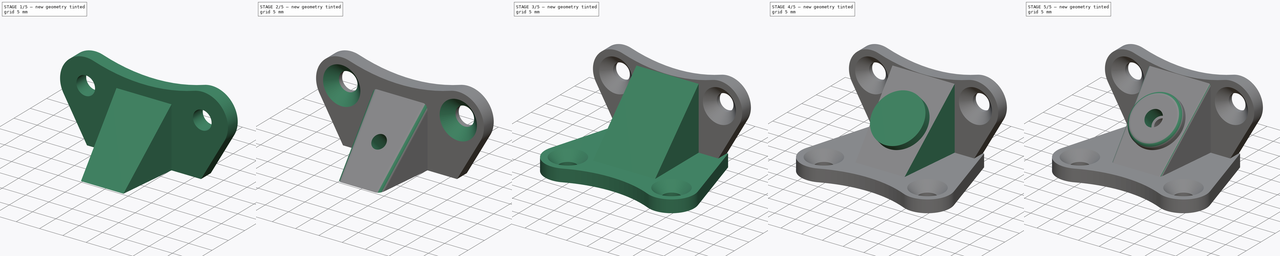
[diagram: build sequence overview — one tinted view per stage of 5, left to right]
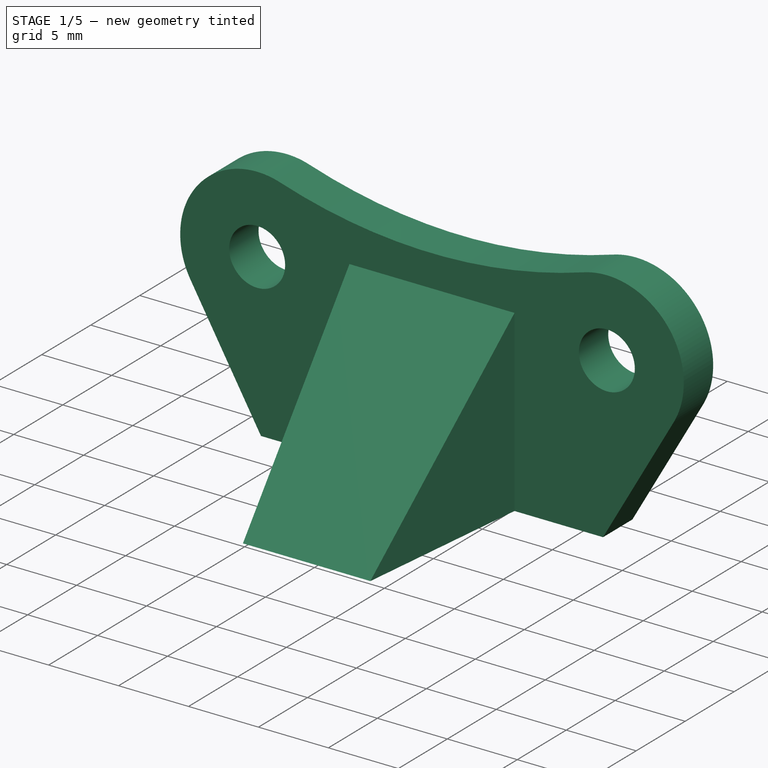
[diagram: stage 1 of 5 — iso view after this stage's code; geometry added in this stage tinted green]
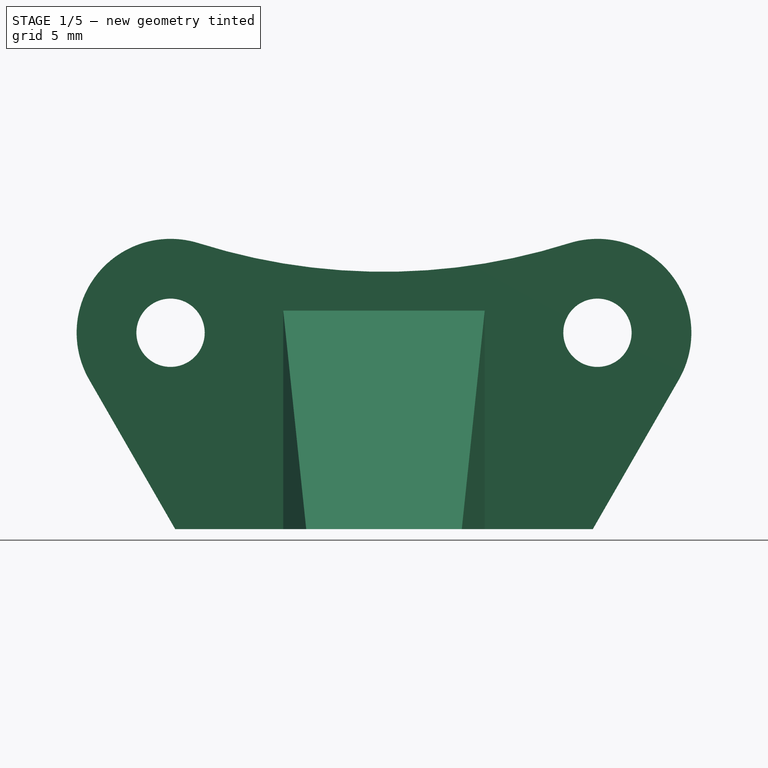
[diagram: stage 1 of 5 — front view after this stage's code; geometry added in this stage tinted green]
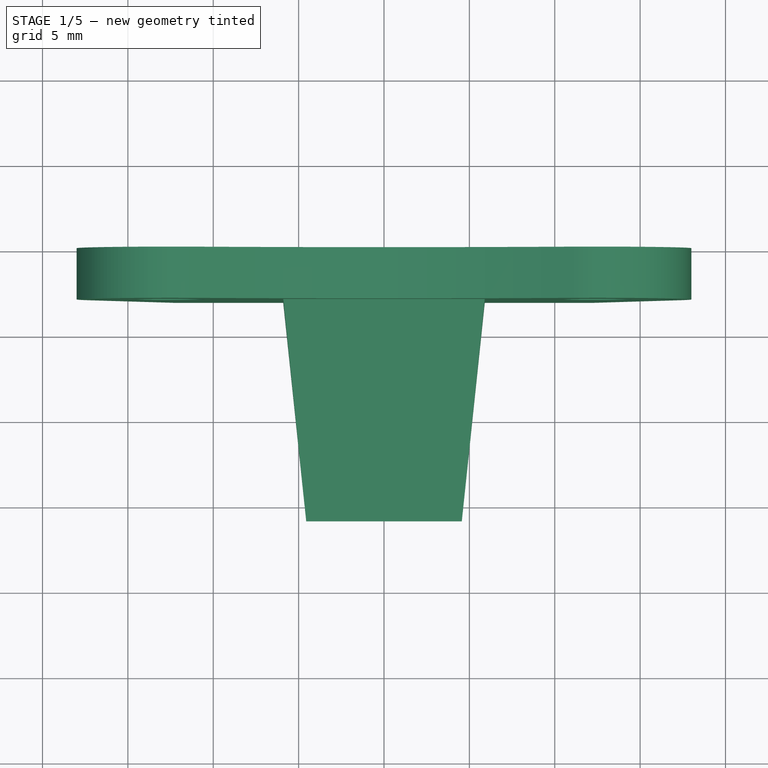
[diagram: stage 1 of 5 — top view after this stage's code; geometry added in this stage tinted green]
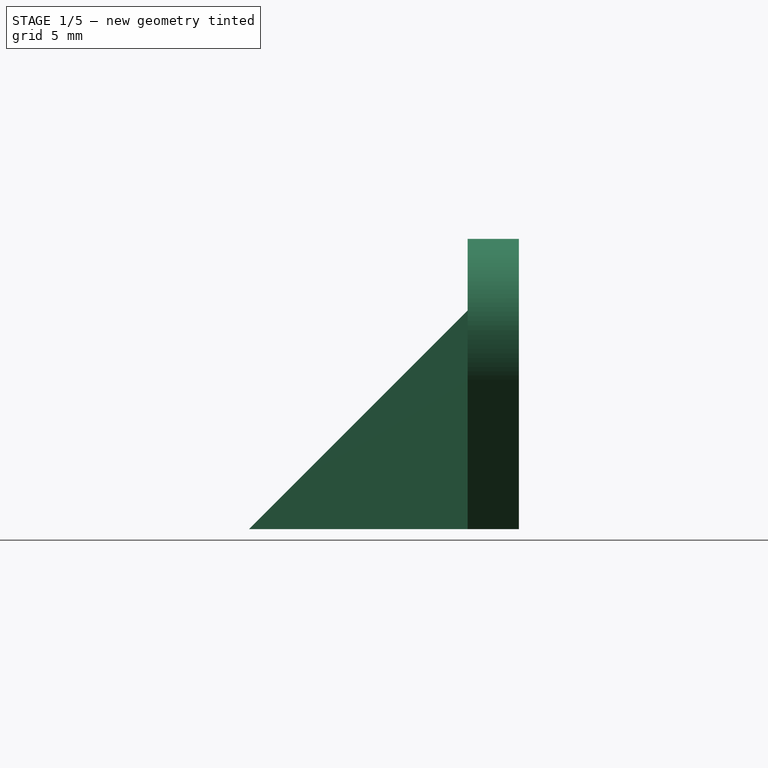
[diagram: stage 1 of 5 — right view after this stage's code; geometry added in this stage tinted green]
FCSTD DOCUMENT  (FreeCAD 1.0R39109 (Git))
Label: притяжка
License: All rights reserved
LicenseURL: https://en.wikipedia.org/wiki/All_rights_reserved
objects: Sketcher::SketchObject×8, PartDesign::Pad×5, PartDesign::Pocket×3, PartDesign::Draft×3, PartDesign::Fillet×3, PartDesign::Chamfer×2, PartDesign::Body×2
note: 66 computed .brp shape members not serialized (recipe doc carries the construction recipe); baked Part::Feature solids carry a one-line shape summary decoded from their .brp

FEATURE [PartDesign::Body] Body
  AllowCompound = false
  Group = -> [Sketch,Pad,Chamfer,Sketch001,Pad001,Sketch002,Pocket,Draft,Draft001,Sketch003,Pad002,Sketch004,Pocket001,Fillet,Fillet001]
  Origin = -> Origin
  Tip = -> Fillet001
FEATURE [Sketcher::SketchObject] Sketch005
  ArcFitTolerance = 1e-06
  AttachmentSupport = -> [XZ_Plane001]
  FullyConstrained = true
  MakeInternals = false
  MapMode = 5
  Placement = pos=(0,0,0) rot=(1,0,0;1.5708rad)
  sketch-geometry (13):
    g0: LineSegment [constr] StartX=-18 StartY=0 StartZ=0 EndX=18 EndY=0 EndZ=0
    g1: LineSegment [constr] StartX=18 StartY=0 StartZ=0 EndX=18 EndY=20 EndZ=0
    g2: LineSegment [constr] StartX=18 StartY=20 StartZ=0 EndX=-18 EndY=20 EndZ=0
    g3: LineSegment [constr] StartX=-18 StartY=20 StartZ=0 EndX=-18 EndY=0 EndZ=0
    g4: Circle CenterX=-12.5 CenterY=14.5 CenterZ=0 NormalX=0 NormalY=0 NormalZ=1 AngleXU=0 Radius=2
    g5: Circle CenterX=12.5 CenterY=14.5 CenterZ=0 NormalX=0 NormalY=0 NormalZ=1 AngleXU=0 Radius=2
    g6: ArcOfCircle CenterX=-12.5 CenterY=14.5 CenterZ=0 NormalX=0 NormalY=0 NormalZ=1 AngleXU=0 Radius=5.5 StartAngle=1.26484 EndAngle=3.66387
    g7: ArcOfCircle CenterX=12.5 CenterY=14.5 CenterZ=0 NormalX=0 NormalY=0 NormalZ=1 AngleXU=0 Radius=5.5 StartAngle=5.76091 EndAngle=8.15994
    g8: ArcOfCircle CenterX=4e-15 CenterY=54.0727 CenterZ=0 NormalX=0 NormalY=0 NormalZ=1 AngleXU=0 Radius=36 StartAngle=4.40643 EndAngle=5.01834
    g9: LineSegment StartX=-17.2668 StartY=11.7563 StartZ=0 EndX=-12.2268 EndY=3 EndZ=0
    g10: LineSegment [constr] StartX=-10.5 StartY=0 StartZ=0 EndX=10.5 EndY=0 EndZ=0
    g11: LineSegment StartX=12.2268 StartY=3 StartZ=0 EndX=17.2668 EndY=11.7563 EndZ=0
    g12: LineSegment StartX=-12.2268 StartY=3 StartZ=0 EndX=12.2268 EndY=3 EndZ=0
  constraints (34):
    c: Coincident(g0,g1)
    c: Coincident(g1,g2)
    c: Coincident(g2,g3)
    c: Coincident(g3,g0)
    c: Horizontal(g0)
    c: Horizontal(g2)
    c: Vertical(g1)
    c: Vertical(g3)
    c: DistanceX(g0,g0) = 36
    c: DistanceY(g1,g1) = 20
    c: Symmetric(g4,g5,g-2)
    c: Equal(g4,g5)
    c: Diameter(g4) = 4
    c: Coincident(g6,g4)
    c: Coincident(g7,g5)
    c: PointOnObject(g10,g0)
    c: DistanceX(g4,g5) = 25
    c: Tangent(g11,g7) = -1.5708
    c: Tangent(g8,g7) = 1.5708
    c: Tangent(g8,g6) = 1.5708
    c: Tangent(g6,g9) = -1.5708
    c: Equal(g6,g7)
    c: Tangent(g7,g2)
    c: Tangent(g7,g1)
    c: Radius(g8) = 36
    c: DistanceX(g10,g10) = 21
    c: Horizontal(g12)
    c: Distance(g12,g-1) = 3
    c: Coincident(g11,g12)
    c: Coincident(g9,g12)
    c: PointOnObject(g10,g11)
    c: Symmetric(g0,g0,g-1)
    c: PointOnObject(g10,g9)
    c: Symmetric(g10,g10,g-1)
FEATURE [PartDesign::Pad] Pad003
  Direction = (0,-1,2e-16)
  Length = 3
  Length2 = 10
  Placement = pos=(0,0,0) rot=(1,0,0;1.5708rad)
  Profile = -> Sketch005
  ReferenceAxis = -> Sketch005 [N_Axis]
  Refine = true
  Suppressed = false
  Type = 0
FEATURE [Sketcher::SketchObject] Sketch006
  ArcFitTolerance = 1e-06
  AttachmentSupport = -> [YZ_Plane001]
  ExternalGeometry = -> [Pad003]
  FullyConstrained = true
  MakeInternals = false
  MapMode = 5
  Placement = pos=(0,0,0) rot=(0.57735,0.57735,0.57735;2.0944rad)
  sketch-geometry (3):
    g0: LineSegment StartX=-3 StartY=3 StartZ=0 EndX=-15.8 EndY=3 EndZ=0
    g1: LineSegment StartX=-15.8 StartY=3 StartZ=0 EndX=-3 EndY=15.8 EndZ=0
    g2: LineSegment StartX=-3 StartY=15.8 StartZ=0 EndX=-3 EndY=3 EndZ=0
  constraints (8):
    c: Coincident(g-4,g0)
    c: Horizontal(g0)
    c: Coincident(g0,g1)
    c: Coincident(g1,g2)
    c: Vertical(g2)
    c: Coincident(g2,g0)
    c: Equal(g2,g0)
    c: DistanceY(g2,g2) = 12.8
FEATURE [PartDesign::Pad] Pad004
  BaseFeature = -> Pad003
  Direction = (1,0,0)
  Length = 11.8
  Length2 = 10
  Midplane = true
  Placement = pos=(0,0,0) rot=(1,0,0;1.5708rad)
  Profile = -> Sketch006
  ReferenceAxis = -> Sketch006 [N_Axis]
  Refine = true
  Suppressed = false
  Type = 0
FEATURE [PartDesign::Draft] Draft002
  Angle = 6
  Base = -> Pad004 [Face12,Face10]
  BaseFeature = -> Pad004
  NeutralPlane = -> Pad004 [Face5]
  Placement = pos=(0,0,0) rot=(1,0,0;1.5708rad)
  Refine = true
  Reversed = true
  SupportTransform = false
  Suppressed = false
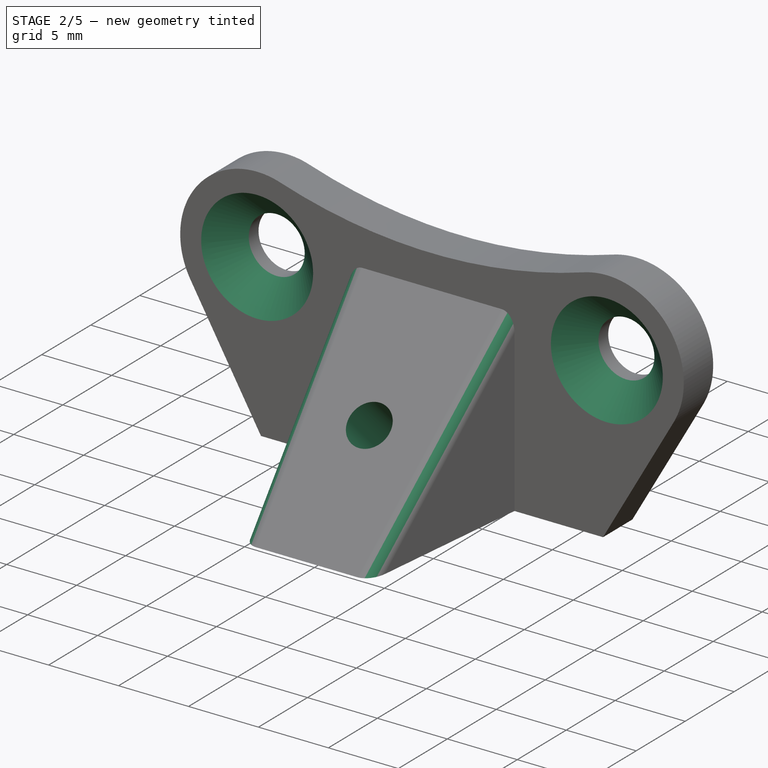
[diagram: stage 2 of 5 — iso view after this stage's code; geometry added in this stage tinted green]
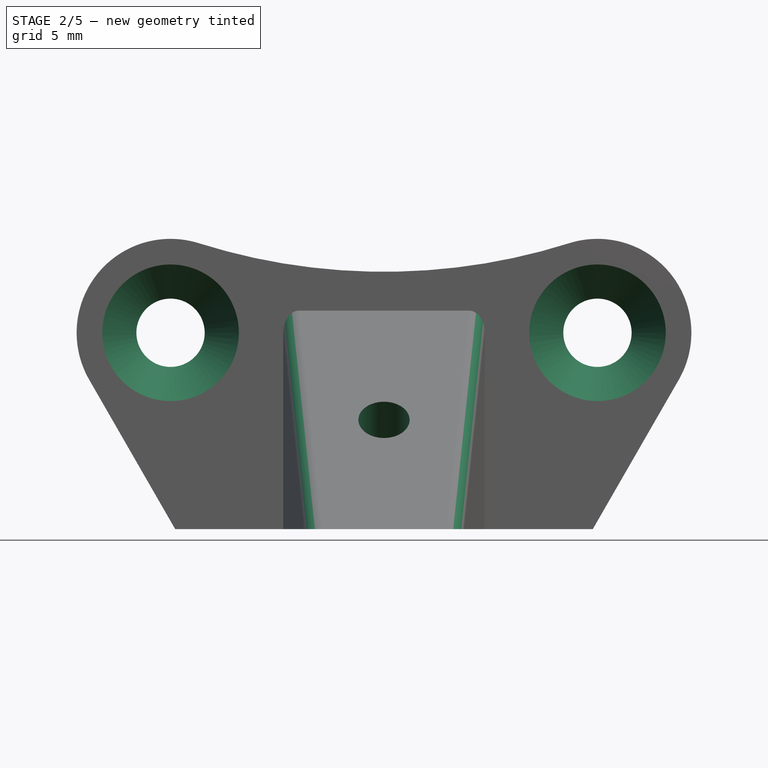
[diagram: stage 2 of 5 — front view after this stage's code; geometry added in this stage tinted green]
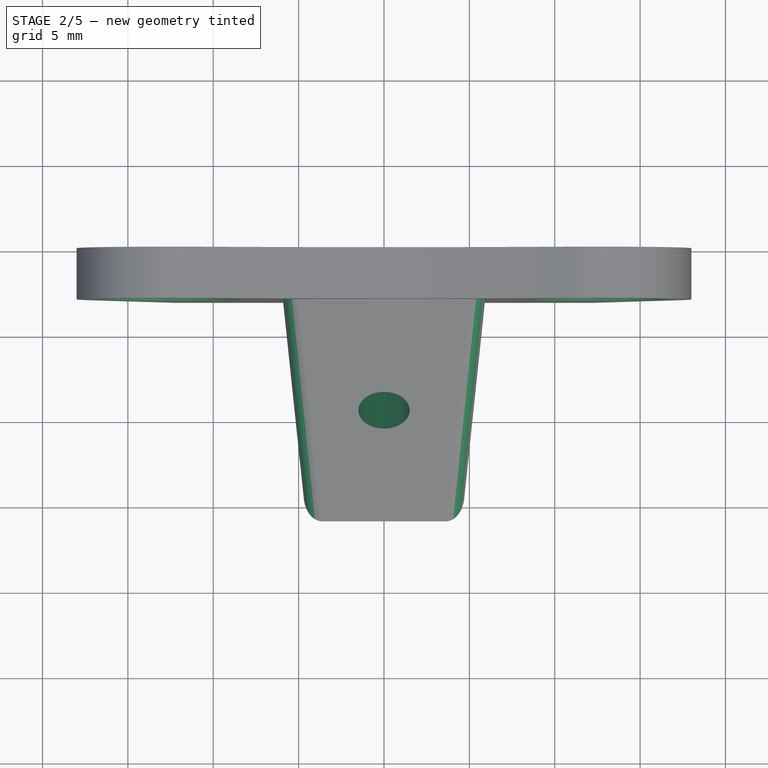
[diagram: stage 2 of 5 — top view after this stage's code; geometry added in this stage tinted green]
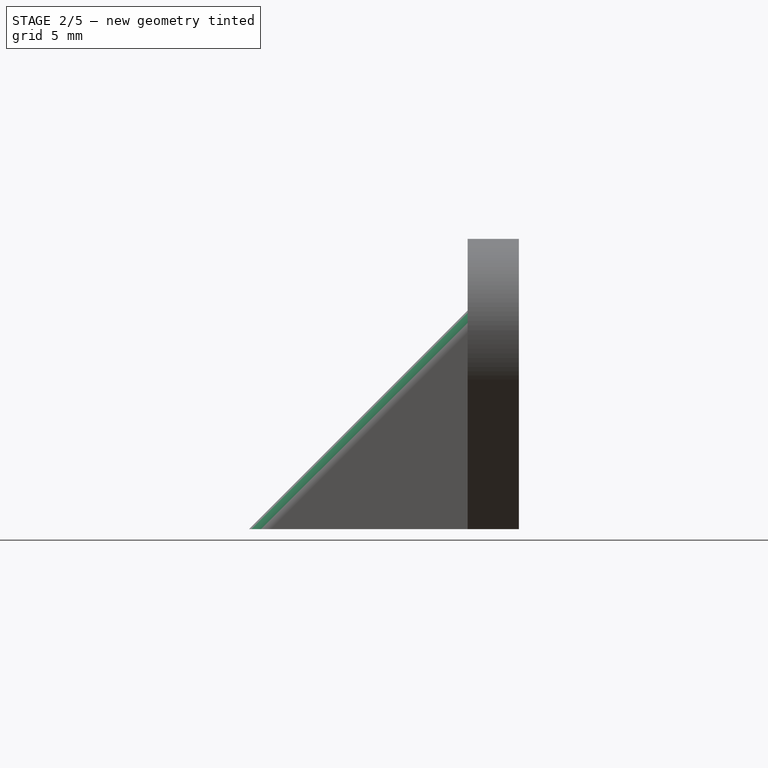
[diagram: stage 2 of 5 — right view after this stage's code; geometry added in this stage tinted green]
FEATURE [PartDesign::Chamfer] Chamfer001
  Angle = 45
  Base = -> Draft002 [Edge23,Edge24]
  BaseFeature = -> Draft002
  ChamferType = 0
  FlipDirection = false
  Placement = pos=(0,0,0) rot=(1,0,0;1.5708rad)
  Refine = true
  Size = 2
  Size2 = 1
  SupportTransform = false
  Suppressed = false
  UseAllEdges = false
FEATURE [Sketcher::SketchObject] Sketch007
  ArcFitTolerance = 1e-06
  AttachmentSupport = -> [Chamfer001]
  FullyConstrained = true
  MakeInternals = false
  MapMode = 5
  Placement = pos=(0,-9.4,9.4) rot=(0,-0.382683,0.92388;3.14159rad)
  sketch-geometry (1):
    g0: Circle CenterX=0 CenterY=0 CenterZ=0 NormalX=0 NormalY=0 NormalZ=1 AngleXU=0 Radius=1.5
  constraints (2):
    c: Coincident(g0,g-1)
    c: Diameter(g0) = 3
FEATURE [PartDesign::Pocket] Pocket002
  BaseFeature = -> Chamfer001
  Direction = (0,0.707107,-0.707107)
  Length = 5
  Length2 = 5
  Placement = pos=(0,0,0) rot=(1,0,0;1.5708rad)
  Profile = -> Sketch007
  ReferenceAxis = -> Sketch007 [N_Axis]
  Refine = true
  Suppressed = false
  Type = 1
FEATURE [PartDesign::Fillet] Fillet002
  Base = -> Pocket002 [Edge26,Edge27]
  BaseFeature = -> Pocket002
  Placement = pos=(0,0,0) rot=(1,0,0;1.5708rad)
  Radius = 1
  Refine = true
  SupportTransform = false
  Suppressed = false
  UseAllEdges = false
FEATURE [PartDesign::Body] Body001  label="Тело"
  AllowCompound = false
  Group = -> [Sketch005,Pad003,Sketch006,Pad004,Draft002,Chamfer001,Sketch007,Pocket002,Fillet002]
  Origin = -> Origin001
  Tip = -> Fillet002
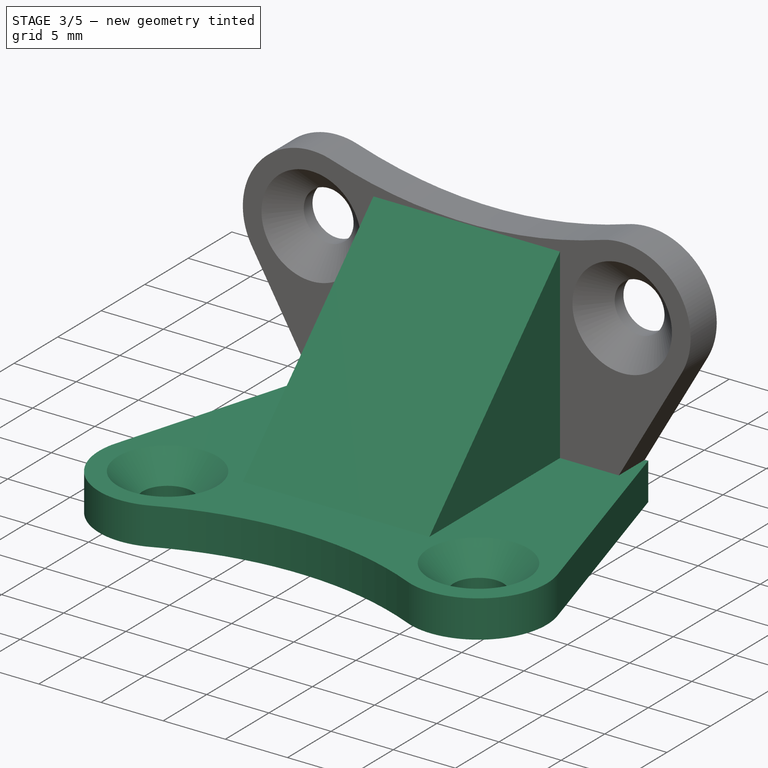
[diagram: stage 3 of 5 — iso view after this stage's code; geometry added in this stage tinted green]
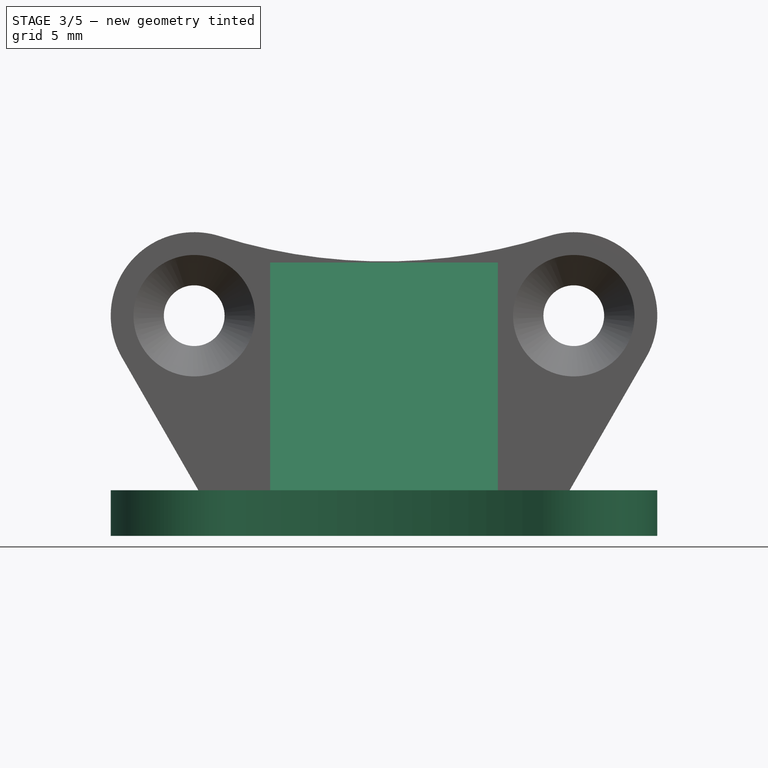
[diagram: stage 3 of 5 — front view after this stage's code; geometry added in this stage tinted green]
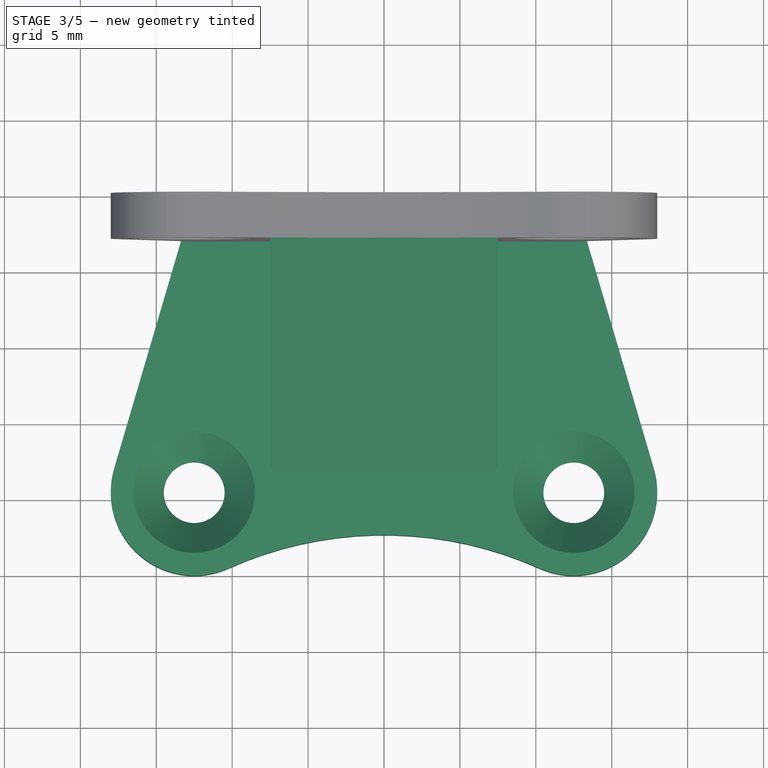
[diagram: stage 3 of 5 — top view after this stage's code; geometry added in this stage tinted green]
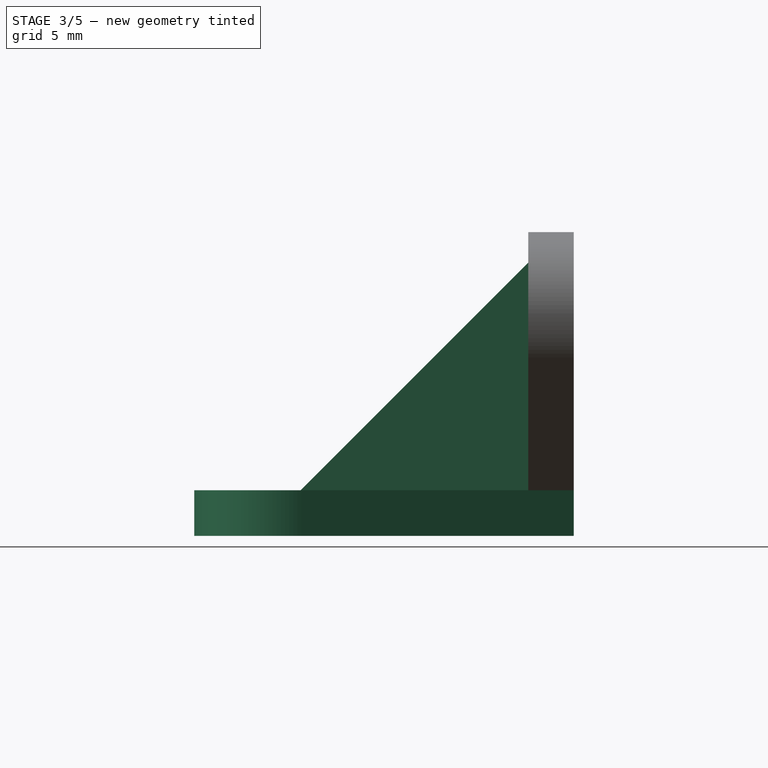
[diagram: stage 3 of 5 — right view after this stage's code; geometry added in this stage tinted green]
FEATURE [Sketcher::SketchObject] Sketch
  ArcFitTolerance = 1e-06
  AttachmentSupport = -> [XY_Plane]
  FullyConstrained = true
  MakeInternals = false
  MapMode = 5
  sketch-geometry (12):
    g0: LineSegment [constr] StartX=-18 StartY=0 StartZ=0 EndX=-18 EndY=-25 EndZ=0
    g1: LineSegment [constr] StartX=-18 StartY=-25 StartZ=0 EndX=18 EndY=-25 EndZ=0
    g2: LineSegment [constr] StartX=18 StartY=-25 StartZ=0 EndX=18 EndY=0 EndZ=0
    g3: LineSegment [constr] StartX=18 StartY=0 StartZ=0 EndX=-18 EndY=0 EndZ=0
    g4: Circle CenterX=-12.5 CenterY=-19.5 CenterZ=0 NormalX=0 NormalY=0 NormalZ=1 AngleXU=0 Radius=2
    g5: Circle CenterX=12.5 CenterY=-19.5 CenterZ=0 NormalX=0 NormalY=0 NormalZ=1 AngleXU=0 Radius=2
    g6: ArcOfCircle CenterX=-12.5 CenterY=-19.5 CenterZ=0 NormalX=0 NormalY=0 NormalZ=1 AngleXU=0 Radius=5.5 StartAngle=2.85566 EndAngle=5.13466
    g7: ArcOfCircle CenterX=12.5 CenterY=-19.5 CenterZ=0 NormalX=0 NormalY=0 NormalZ=1 AngleXU=0 Radius=5.5 StartAngle=4.29011 EndAngle=6.56912
    g8: ArcOfCircle CenterX=5e-16 CenterY=-47.3209 CenterZ=0 NormalX=0 NormalY=0 NormalZ=1 AngleXU=0 Radius=25 StartAngle=1.14852 EndAngle=1.99307
    g9: LineSegment StartX=-17.7767 StartY=-17.9487 StartZ=0 EndX=-12.5 EndY=0 EndZ=0
    g10: LineSegment StartX=-12.5 StartY=0 StartZ=0 EndX=12.5 EndY=0 EndZ=0
    g11: LineSegment StartX=12.5 StartY=0 StartZ=0 EndX=17.7767 EndY=-17.9487 EndZ=0
  constraints (30):
    c: Coincident(g0,g1)
    c: Coincident(g1,g2)
    c: Coincident(g2,g3)
    c: Coincident(g3,g0)
    c: Vertical(g0)
    c: Vertical(g2)
    c: Horizontal(g1)
    c: Horizontal(g3)
    c: Symmetric(g0,g2,g-1)
    c: DistanceX(g3,g3) = 36
    c: DistanceY(g2,g2) = 25
    c: Symmetric(g5,g4,g-2)
    c: Equal(g4,g5)
    c: Diameter(g4) = 4
    c: DistanceX(g4,g5) = 25
    c: Coincident(g6,g4)
    c: Coincident(g7,g5)
    c: Equal(g6,g7)
    c: Tangent(g6,g0)
    c: Tangent(g6,g1)
    c: PointOnObject(g9,g3)
    c: Coincident(g9,g10)
    c: Coincident(g10,g11)
    c: Symmetric(g9,g10,g-1)
    c: DistanceX(g10,g10) = 25
    c: Tangent(g6,g9) = 1.5708
    c: Tangent(g11,g7) = 1.5708
    c: Tangent(g8,g7) = 1.5708
    c: Tangent(g8,g6) = 1.5708
    c: Radius(g8) = 25
FEATURE [PartDesign::Pad] Pad
  Direction = (0,0,1)
  Length = 3
  Length2 = 10
  Profile = -> Sketch
  ReferenceAxis = -> Sketch [N_Axis]
  Refine = true
  Suppressed = false
  Type = 0
FEATURE [PartDesign::Chamfer] Chamfer
  Angle = 45
  Base = -> Pad [Edge24,Edge21]
  BaseFeature = -> Pad
  ChamferType = 0
  FlipDirection = false
  Refine = true
  Size = 2
  Size2 = 1
  SupportTransform = false
  Suppressed = false
  UseAllEdges = false
FEATURE [Sketcher::SketchObject] Sketch001
  ArcFitTolerance = 1e-06
  AttachmentSupport = -> [YZ_Plane]
  ExternalGeometry = -> [Chamfer]
  FullyConstrained = true
  MakeInternals = false
  MapMode = 5
  Placement = pos=(0,0,0) rot=(0.57735,0.57735,0.57735;2.0944rad)
  sketch-geometry (3):
    g0: LineSegment StartX=-18 StartY=3 StartZ=0 EndX=-3 EndY=18 EndZ=0
    g1: LineSegment StartX=-3 StartY=18 StartZ=0 EndX=-3 EndY=3 EndZ=0
    g2: LineSegment StartX=-3 StartY=3 StartZ=0 EndX=-18 EndY=3 EndZ=0
  constraints (9):
    c: PointOnObject(g0,g-3)
    c: Coincident(g0,g1)
    c: PointOnObject(g1,g-3)
    c: Vertical(g1)
    c: Coincident(g1,g2)
    c: Coincident(g2,g0)
    c: Equal(g1,g2)
    c: Distance(g1,g-3) = 3
    c: DistanceY(g1,g1) = 15
FEATURE [PartDesign::Pad] Pad001
  BaseFeature = -> Chamfer
  Direction = (1,0,0)
  Length = 15
  Length2 = 10
  Midplane = true
  Profile = -> Sketch001
  ReferenceAxis = -> Sketch001 [N_Axis]
  Refine = true
  Suppressed = false
  Type = 0
FEATURE [Sketcher::SketchObject] Sketch002
  ArcFitTolerance = 1e-06
  AttachmentSupport = -> [YZ_Plane]
  ExternalGeometry = -> [Pad001]
  FullyConstrained = true
  MakeInternals = false
  MapMode = 5
  Placement = pos=(0,0,0) rot=(0.57735,0.57735,0.57735;2.0944rad)
  sketch-geometry (3):
    g0: LineSegment StartX=-16 StartY=3 StartZ=0 EndX=-3 EndY=16 EndZ=0
    g1: LineSegment StartX=-3 StartY=16 StartZ=0 EndX=-3 EndY=3 EndZ=0
    g2: LineSegment StartX=-3 StartY=3 StartZ=0 EndX=-16 EndY=3 EndZ=0
  constraints (8):
    c: PointOnObject(g0,g-4)
    c: PointOnObject(g0,g-3)
    c: Coincident(g0,g1)
    c: Coincident(g1,g-3)
    c: Coincident(g1,g2)
    c: Coincident(g2,g0)
    c: Equal(g1,g2)
    c: DistanceY(g1,g1) = 13
FEATURE [PartDesign::Pocket] Pocket
  BaseFeature = -> Pad001
  Direction = (-1,0,0)
  Length = 12
  Length2 = 5
  Midplane = true
  Profile = -> Sketch002
  ReferenceAxis = -> Sketch002 [N_Axis]
  Refine = true
  Suppressed = false
  Type = 0
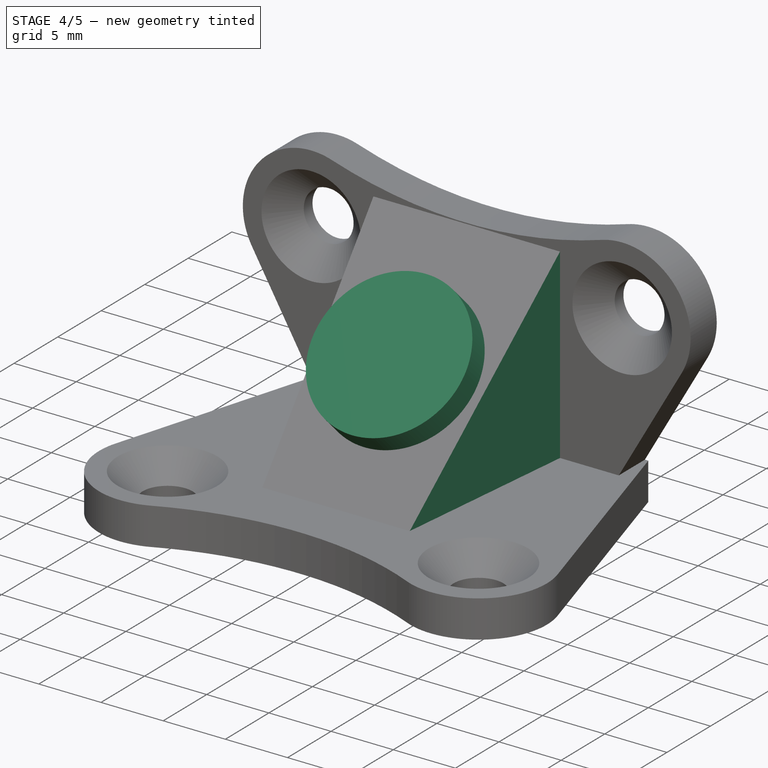
[diagram: stage 4 of 5 — iso view after this stage's code; geometry added in this stage tinted green]
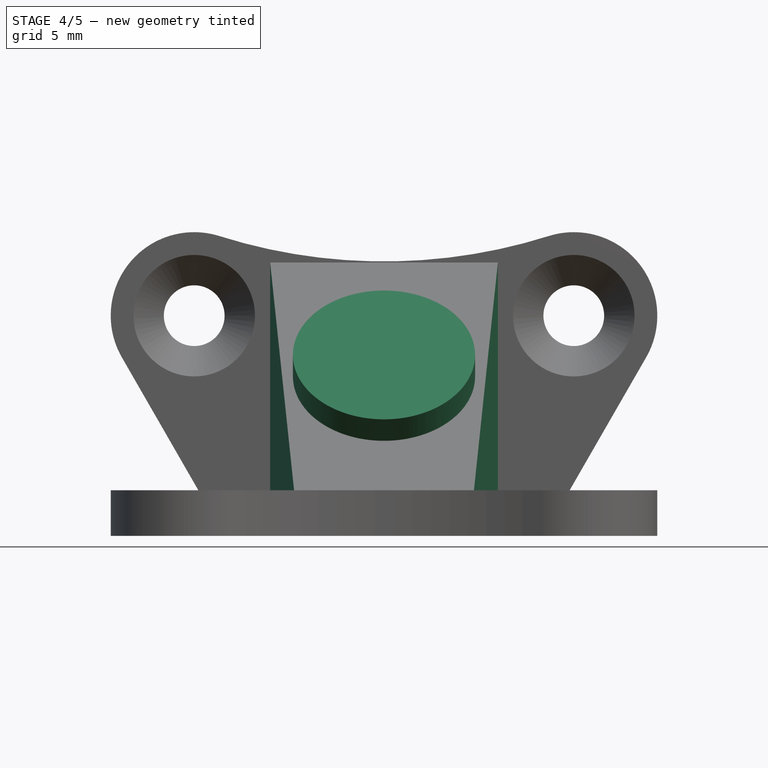
[diagram: stage 4 of 5 — front view after this stage's code; geometry added in this stage tinted green]
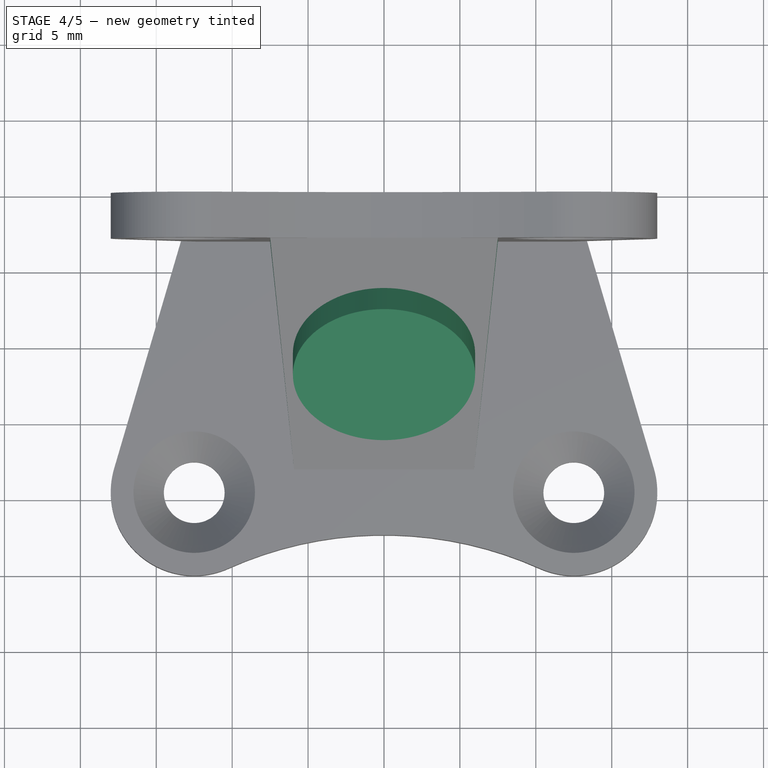
[diagram: stage 4 of 5 — top view after this stage's code; geometry added in this stage tinted green]
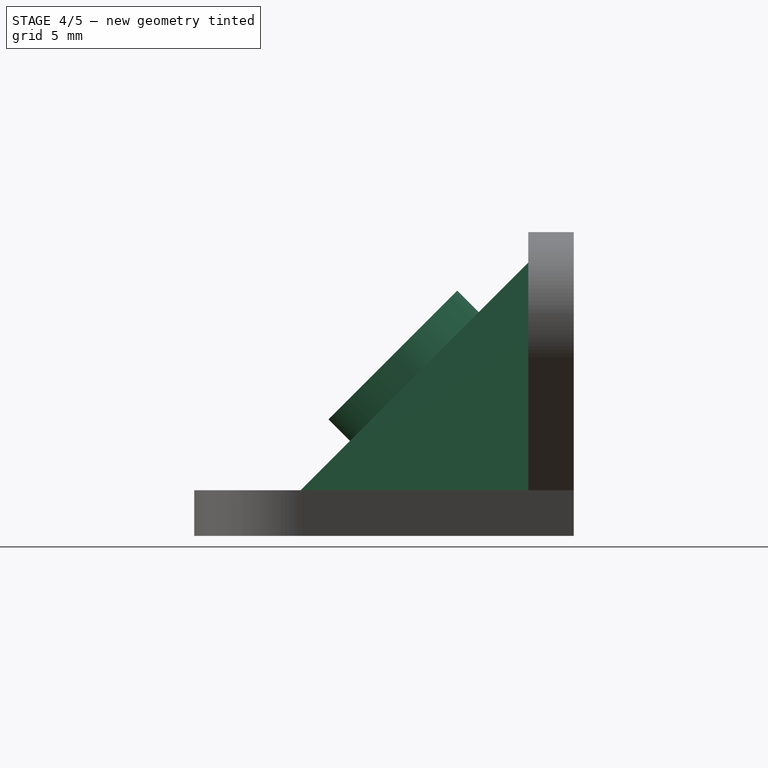
[diagram: stage 4 of 5 — right view after this stage's code; geometry added in this stage tinted green]
FEATURE [PartDesign::Draft] Draft
  Angle = 6
  Base = -> Pocket [Face16,Face14]
  BaseFeature = -> Pocket
  NeutralPlane = -> Pocket [Face15]
  Refine = true
  Reversed = true
  SupportTransform = false
  Suppressed = false
FEATURE [PartDesign::Draft] Draft001
  Angle = 6
  Base = -> Draft [Face19,Face17]
  BaseFeature = -> Draft
  NeutralPlane = -> Draft [Face15]
  Refine = true
  SupportTransform = false
  Suppressed = false
FEATURE [Sketcher::SketchObject] Sketch003
  ArcFitTolerance = 1e-06
  AttachmentSupport = -> [Draft001]
  FullyConstrained = true
  MakeInternals = false
  MapMode = 5
  Placement = pos=(0,-10.5,10.5) rot=(1,0,0;0.785398rad)
  sketch-geometry (1):
    g0: Circle CenterX=0 CenterY=0 CenterZ=0 NormalX=0 NormalY=0 NormalZ=1 AngleXU=0 Radius=6
  constraints (2):
    c: Diameter(g0) = 12
    c: Coincident(g0,g-1)
FEATURE [PartDesign::Pad] Pad002
  BaseFeature = -> Draft001
  Direction = (0,-0.707107,0.707107)
  Length = 2
  Length2 = 10
  Profile = -> Sketch003
  ReferenceAxis = -> Sketch003 [N_Axis]
  Refine = true
  Suppressed = false
  Type = 0
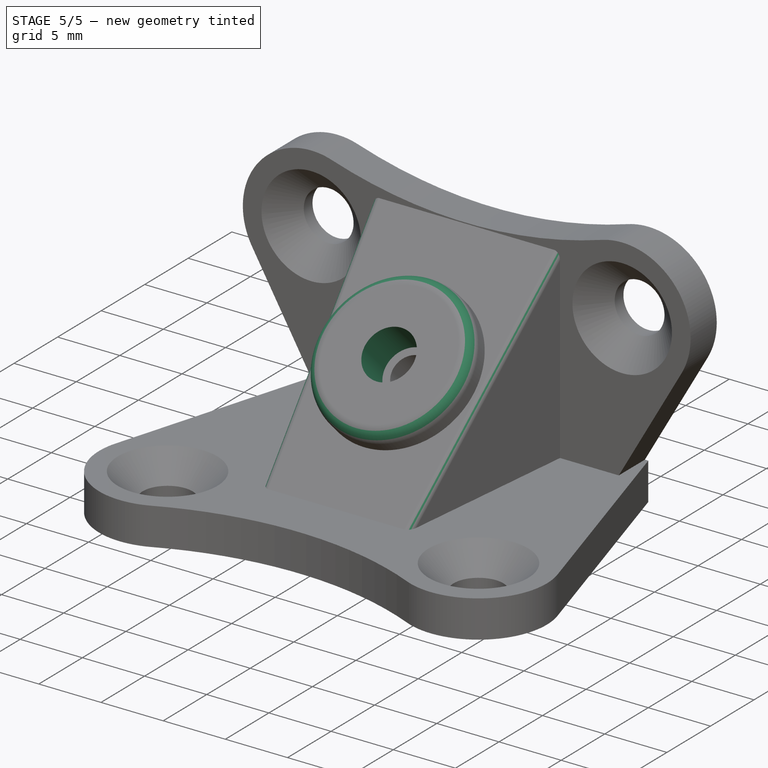
[diagram: stage 5 of 5 — iso view after this stage's code; geometry added in this stage tinted green]
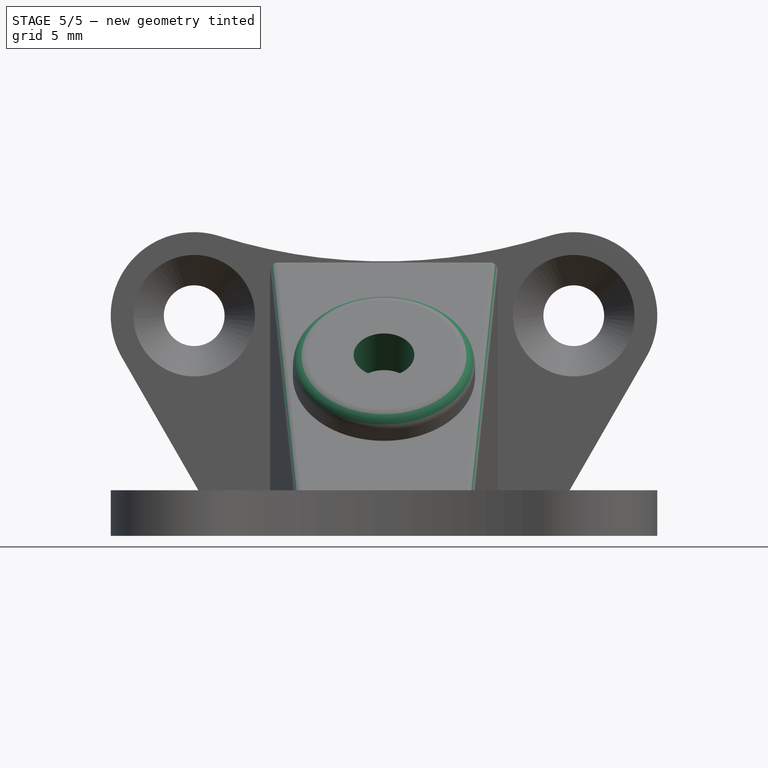
[diagram: stage 5 of 5 — front view after this stage's code; geometry added in this stage tinted green]
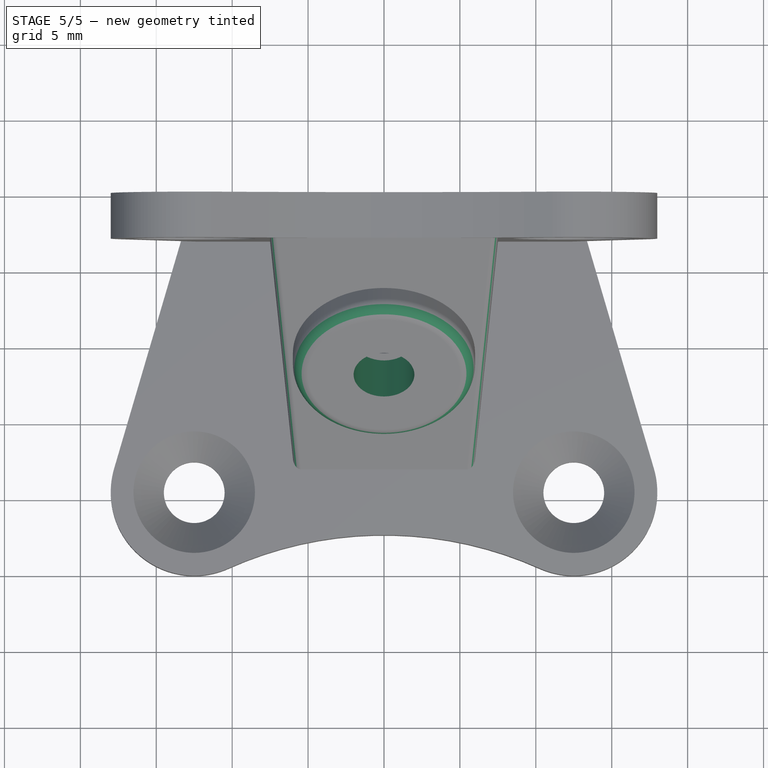
[diagram: stage 5 of 5 — top view after this stage's code; geometry added in this stage tinted green]
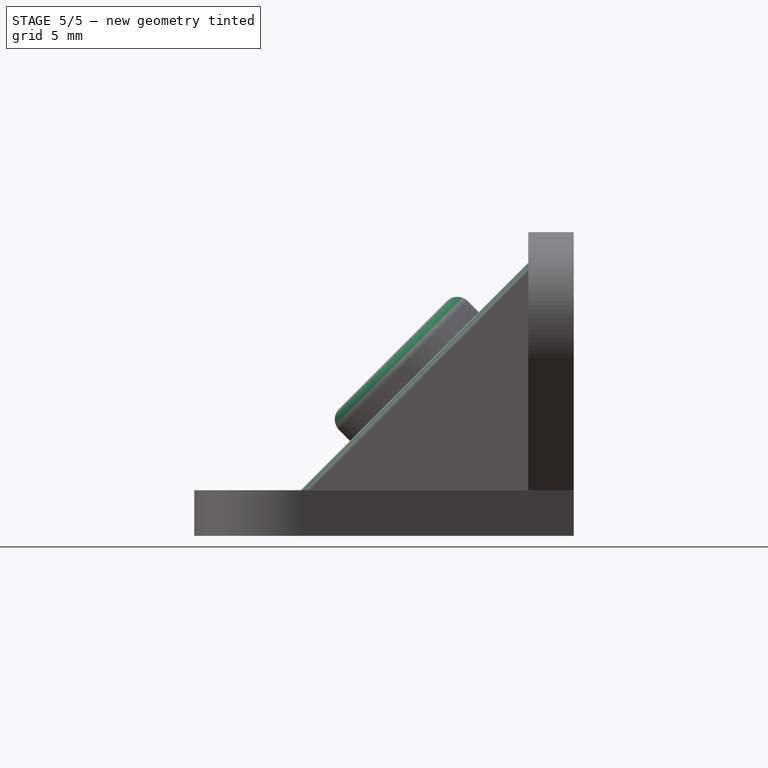
[diagram: stage 5 of 5 — right view after this stage's code; geometry added in this stage tinted green]
FEATURE [Sketcher::SketchObject] Sketch004
  ArcFitTolerance = 1e-06
  AttachmentSupport = -> [Pad002]
  ExternalGeometry = -> [Pad002]
  FullyConstrained = true
  MakeInternals = false
  MapMode = 5
  Placement = pos=(0,-11.9142,11.9142) rot=(1,0,0;0.785398rad)
  sketch-geometry (1):
    g0: Circle CenterX=0 CenterY=0 CenterZ=0 NormalX=0 NormalY=0 NormalZ=1 AngleXU=0 Radius=2
  constraints (2):
    c: Diameter(g0) = 4
    c: Coincident(g0,g-1)
FEATURE [PartDesign::Pocket] Pocket001
  BaseFeature = -> Pad002
  Direction = (0,0.707107,-0.707107)
  Length = 5
  Length2 = 5
  Profile = -> Sketch004
  ReferenceAxis = -> Sketch004 [N_Axis]
  Refine = true
  Suppressed = false
  Type = 0
FEATURE [PartDesign::Fillet] Fillet
  Base = -> Pocket001 [Edge50]
  BaseFeature = -> Pocket001
  Radius = 1
  Refine = true
  SupportTransform = false
  Suppressed = false
  UseAllEdges = false
FEATURE [PartDesign::Fillet] Fillet001
  Base = -> Fillet [Edge7,Edge8]
  BaseFeature = -> Fillet
  Radius = 0.5
  Refine = true
  SupportTransform = false
  Suppressed = false
  UseAllEdges = false
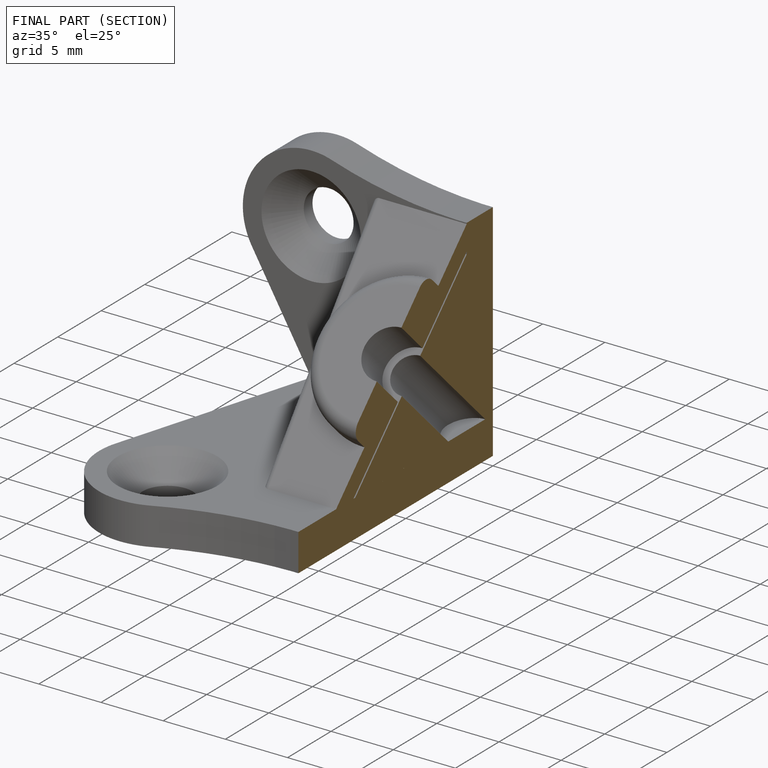
[diagram: finished part — half-section view (interior)]
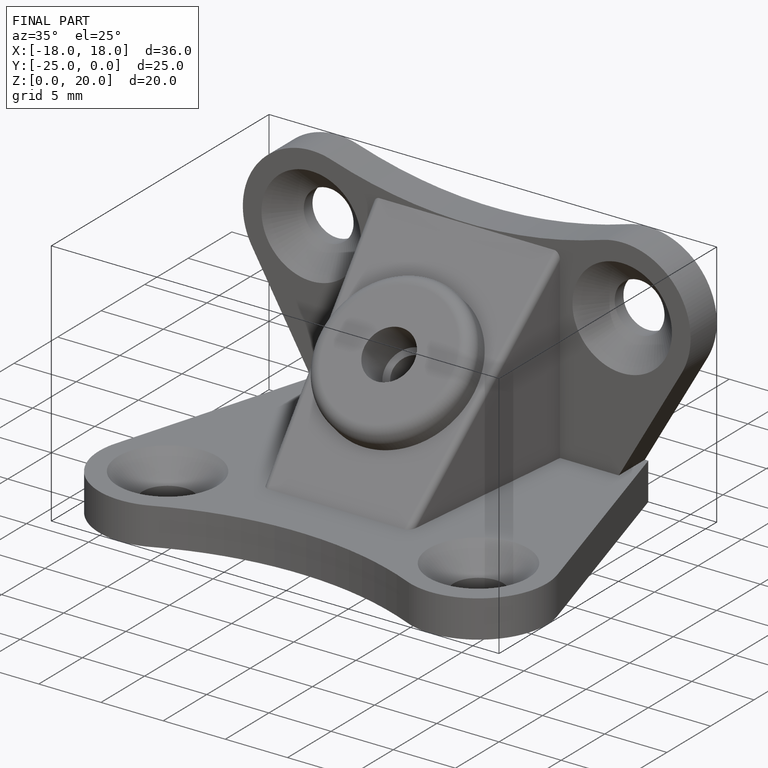
[diagram: finished part — iso view with bounding-box wireframe]
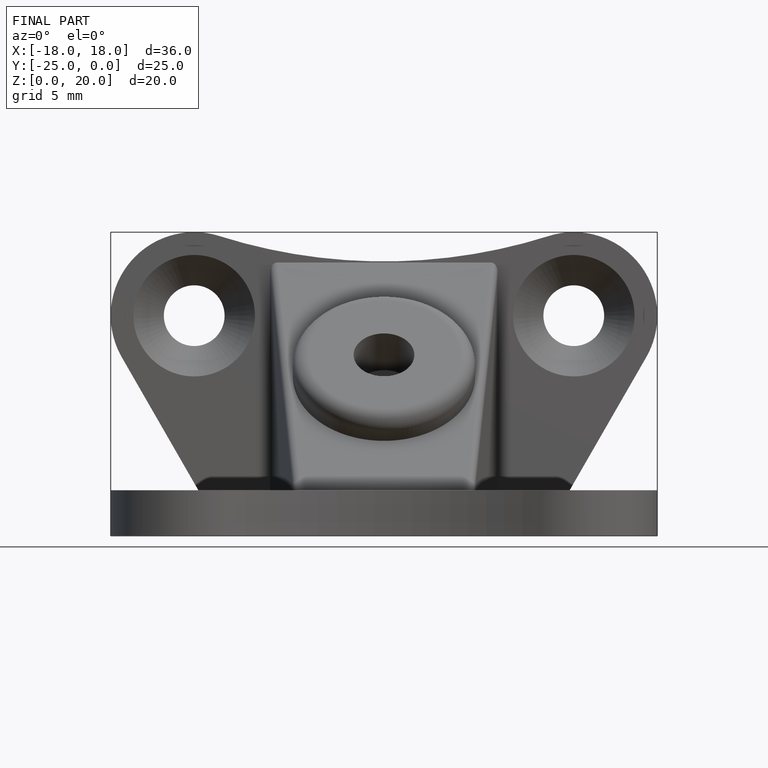
[diagram: finished part — front view with bounding-box wireframe]
